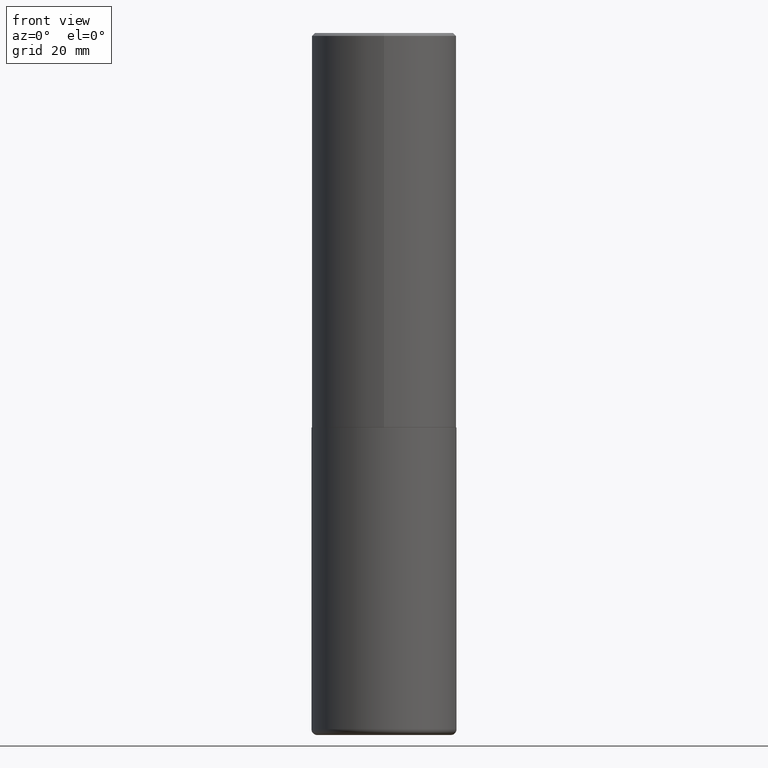
[diagram: clean part render]
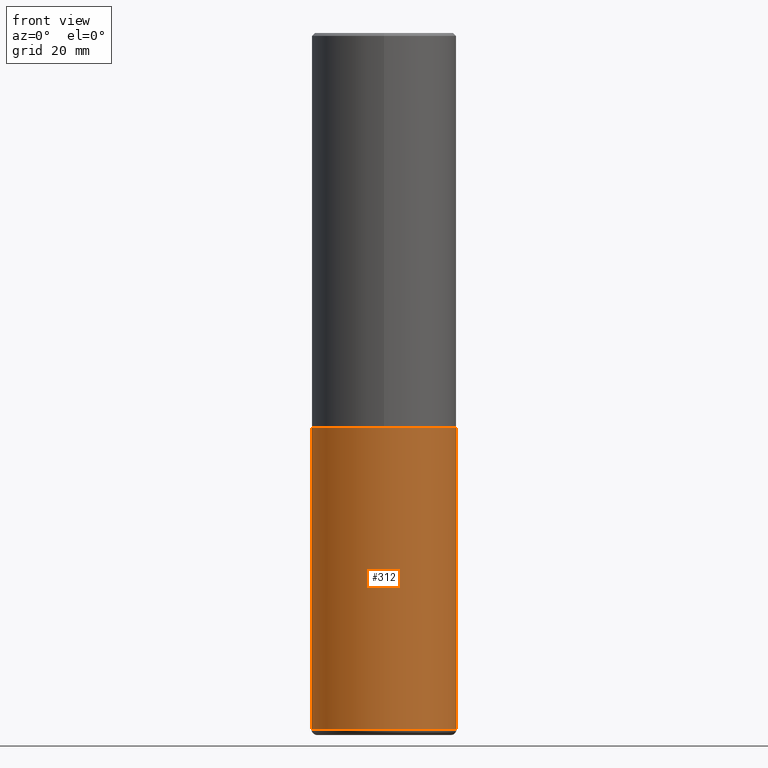
[diagram: same view with one face highlighted and labeled with its STEP entity id]
A machine part, front view. The second image highlights one B-rep face of the part: STEP entity #312.
In plain terms, the highlighted cylindrical surface (partial cylindrical patch) has radius 12.5006 mm, axis along (-0, 0, 1).
Its self-contained STEP definition (entity closure, byte-faithful):
#6 = CARTESIAN_POINT ( 'NONE',  ( -0.4921499999999999764, 3.496936074043332897E-15, -2.420853904668951509E-29 ) ) ;
#15 = CARTESIAN_POINT ( 'NONE',  ( -0.4921500000000000874, -1.299821836318722241E-14, -4.724399999999999267 ) ) ;
#20 = AXIS2_PLACEMENT_3D ( 'NONE', #301, #365, #47 ) ;
#29 = AXIS2_PLACEMENT_3D ( 'NONE', #391, #143, #279 ) ;
#36 = EDGE_LOOP ( 'NONE', ( #385, #351, #287, #383 ) ) ;
#37 = AXIS2_PLACEMENT_3D ( 'NONE', #41, #397, #239 ) ;
#41 = CARTESIAN_POINT ( 'NONE',  ( 0.000000000000000000, 0.000000000000000000, 0.000000000000000000 ) ) ;
#47 = DIRECTION ( 'NONE',  ( 1.000000000000000000, -6.982962677686265922E-15, 0.000000000000000000 ) ) ;
#77 = EDGE_CURVE ( 'NONE', #164, #404, #324, .T. ) ;
#101 = LINE ( 'NONE', #6, #275 ) ;
#106 = CIRCLE ( 'NONE', #20, 0.4921499999999999764 ) ;
#107 = FACE_OUTER_BOUND ( 'NONE', #36, .T. ) ;
#143 = DIRECTION ( 'NONE',  ( -2.445468806185136597E-29, 3.491481338843145583E-15, 1.000000000000000000 ) ) ;
#164 = VERTEX_POINT ( 'NONE', #329 ) ;
#174 = CYLINDRICAL_SURFACE ( 'NONE', #37, 0.4921499999999999764 ) ;
#177 = CARTESIAN_POINT ( 'NONE',  ( -0.4921499999999999764, -9.424338064747378311E-15, -2.677199999999999580 ) ) ;
#190 = CARTESIAN_POINT ( 'NONE',  ( 0.4921499999999999764, -1.278405892217416209E-14, -2.677199999999999580 ) ) ;
#239 = DIRECTION ( 'NONE',  ( 1.000000000000000000, -6.982962677686265922E-15, 4.876176775795935793E-29 ) ) ;
#245 = DIRECTION ( 'NONE',  ( -2.445468806185136877E-29, 3.491481338843145188E-15, 1.000000000000000000 ) ) ;
#265 = CARTESIAN_POINT ( 'NONE',  ( 0.4921499999999999764, -3.436665081823295777E-15, 2.399810400207969603E-29 ) ) ;
#266 = VERTEX_POINT ( 'NONE', #15 ) ;
#275 = VECTOR ( 'NONE', #245, 39.37007874015748143 ) ;
#279 = DIRECTION ( 'NONE',  ( 1.000000000000000000, -6.982962677686261977E-15, 0.000000000000000000 ) ) ;
#287 = ORIENTED_EDGE ( 'NONE', *, *, #77, .T. ) ;
#301 = CARTESIAN_POINT ( 'NONE',  ( 6.547009087918846705E-29, -9.347393840350866318E-15, -2.677199999999999580 ) ) ;
#302 = VECTOR ( 'NONE', #381, 39.37007874015748143 ) ;
#309 = EDGE_CURVE ( 'NONE', #266, #164, #361, .T. ) ;
#312 = ADVANCED_FACE ( 'NONE', ( #107 ), #174, .T. ) ;
#324 = LINE ( 'NONE', #265, #302 ) ;
#329 = CARTESIAN_POINT ( 'NONE',  ( 0.4921500000000000874, -1.993181951905385030E-14, -4.724399999999999267 ) ) ;
#350 = EDGE_CURVE ( 'NONE', #379, #404, #106, .T. ) ;
#351 = ORIENTED_EDGE ( 'NONE', *, *, #309, .T. ) ;
#353 = EDGE_CURVE ( 'NONE', #266, #379, #101, .T. ) ;
#361 = CIRCLE ( 'NONE', #29, 0.4921499999999999764 ) ;
#365 = DIRECTION ( 'NONE',  ( -2.445468806185136597E-29, 3.491481338843145583E-15, 1.000000000000000000 ) ) ;
#379 = VERTEX_POINT ( 'NONE', #177 ) ;
#381 = DIRECTION ( 'NONE',  ( -2.445468806185136877E-29, 3.491481338843145188E-15, 1.000000000000000000 ) ) ;
#383 = ORIENTED_EDGE ( 'NONE', *, *, #350, .F. ) ;
#385 = ORIENTED_EDGE ( 'NONE', *, *, #353, .F. ) ;
#391 = CARTESIAN_POINT ( 'NONE',  ( 1.155337282794105951E-28, -1.649515443723055610E-14, -4.724399999999999267 ) ) ;
#397 = DIRECTION ( 'NONE',  ( -2.445468806185136597E-29, 3.491481338843145583E-15, 1.000000000000000000 ) ) ;
#404 = VERTEX_POINT ( 'NONE', #190 ) ;